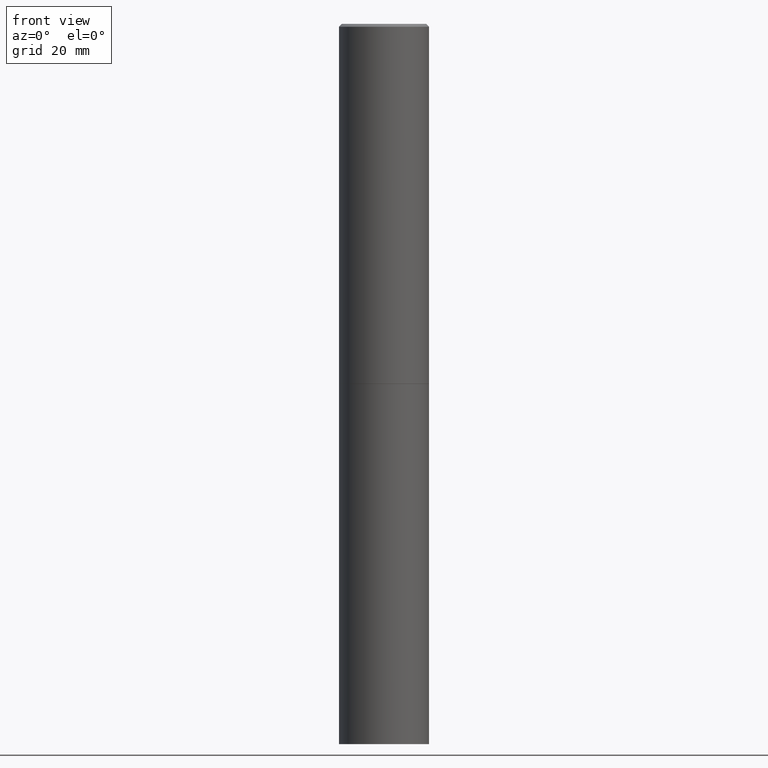
[diagram: clean part render]
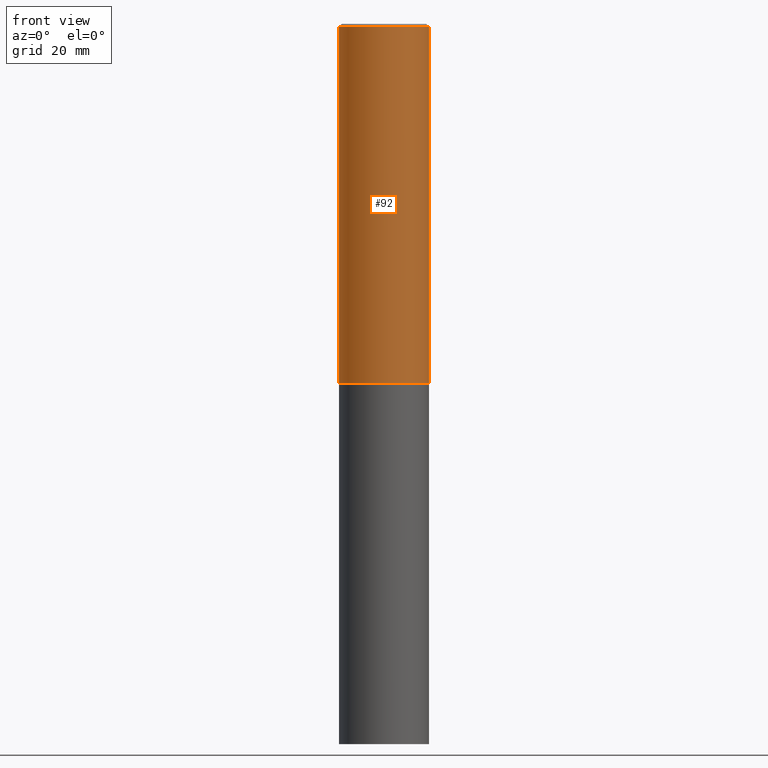
[diagram: same view with one face highlighted and labeled with its STEP entity id]
A machine part, front view. The second image highlights one B-rep face of the part: STEP entity #92.
In plain terms, the highlighted cylindrical surface (partial cylindrical patch) has radius 7.9375 mm, axis along (-0, 0, 1).
Its self-contained STEP definition (entity closure, byte-faithful):
#6 = EDGE_CURVE ( 'NONE', #114, #268, #324, .T. ) ;
#12 = EDGE_LOOP ( 'NONE', ( #245, #123, #58, #172 ) ) ;
#37 = EDGE_CURVE ( 'NONE', #79, #114, #294, .T. ) ;
#38 = VECTOR ( 'NONE', #320, 39.37007874015748143 ) ;
#52 = CARTESIAN_POINT ( 'NONE',  ( 4.890937612370298557E-31, -6.982962677686327354E-17, -0.02000000000000010103 ) ) ;
#54 = EDGE_CURVE ( 'NONE', #79, #340, #316, .T. ) ;
#58 = ORIENTED_EDGE ( 'NONE', *, *, #6, .T. ) ;
#61 = CIRCLE ( 'NONE', #169, 0.3124999999999997224 ) ;
#63 = CARTESIAN_POINT ( 'NONE',  ( -0.3124999999999998890, 2.220446049250312292E-15, -1.537167215704657391E-29 ) ) ;
#71 = AXIS2_PLACEMENT_3D ( 'NONE', #204, #142, #315 ) ;
#79 = VERTEX_POINT ( 'NONE', #118 ) ;
#88 = FACE_OUTER_BOUND ( 'NONE', #12, .T. ) ;
#92 = ADVANCED_FACE ( 'NONE', ( #88 ), #287, .T. ) ;
#114 = VERTEX_POINT ( 'NONE', #155 ) ;
#118 = CARTESIAN_POINT ( 'NONE',  ( -0.3125000000000000000, -2.177074697022629142E-15, -2.499000000000000998 ) ) ;
#123 = ORIENTED_EDGE ( 'NONE', *, *, #37, .T. ) ;
#142 = DIRECTION ( 'NONE',  ( -2.445468806185136597E-29, 3.491481338843145583E-15, 1.000000000000000000 ) ) ;
#150 = CARTESIAN_POINT ( 'NONE',  ( 6.111226546656659252E-29, -8.725211865769023513E-15, -2.499000000000000998 ) ) ;
#151 = CARTESIAN_POINT ( 'NONE',  ( -0.3124999999999997224, 2.112346210000093077E-15, -0.02000000000000010103 ) ) ;
#152 = VECTOR ( 'NONE', #270, 39.37007874015748143 ) ;
#155 = CARTESIAN_POINT ( 'NONE',  ( 0.3125000000000000000, -1.090738770254598186E-14, -2.499000000000000998 ) ) ;
#161 = DIRECTION ( 'NONE',  ( -2.445468806185136597E-29, 3.491481338843145583E-15, 1.000000000000000000 ) ) ;
#166 = DIRECTION ( 'NONE',  ( 1.000000000000000000, -6.982962677686266711E-15, 0.000000000000000000 ) ) ;
#169 = AXIS2_PLACEMENT_3D ( 'NONE', #52, #161, #166 ) ;
#172 = ORIENTED_EDGE ( 'NONE', *, *, #234, .F. ) ;
#182 = CARTESIAN_POINT ( 'NONE',  ( 0.3124999999999998890, -2.182175836776957558E-15, 1.523805242436229235E-29 ) ) ;
#192 = DIRECTION ( 'NONE',  ( 1.000000000000000000, -6.982962677686265133E-15, 0.000000000000000000 ) ) ;
#204 = CARTESIAN_POINT ( 'NONE',  ( 0.000000000000000000, 0.000000000000000000, 0.000000000000000000 ) ) ;
#234 = EDGE_CURVE ( 'NONE', #340, #268, #61, .T. ) ;
#240 = DIRECTION ( 'NONE',  ( -2.445468806185136597E-29, 3.491481338843145583E-15, 1.000000000000000000 ) ) ;
#245 = ORIENTED_EDGE ( 'NONE', *, *, #54, .F. ) ;
#268 = VERTEX_POINT ( 'NONE', #281 ) ;
#270 = DIRECTION ( 'NONE',  ( -2.445468806185136877E-29, 3.491481338843145188E-15, 1.000000000000000000 ) ) ;
#281 = CARTESIAN_POINT ( 'NONE',  ( 0.3124999999999997224, -2.213735251080464939E-15, -0.02000000000000010103 ) ) ;
#287 = CYLINDRICAL_SURFACE ( 'NONE', #71, 0.3124999999999998890 ) ;
#294 = CIRCLE ( 'NONE', #313, 0.3125000000000000000 ) ;
#313 = AXIS2_PLACEMENT_3D ( 'NONE', #150, #240, #192 ) ;
#315 = DIRECTION ( 'NONE',  ( 1.000000000000000000, -6.982962677686266711E-15, 4.876176775795935232E-29 ) ) ;
#316 = LINE ( 'NONE', #63, #152 ) ;
#320 = DIRECTION ( 'NONE',  ( -2.445468806185136877E-29, 3.491481338843145188E-15, 1.000000000000000000 ) ) ;
#324 = LINE ( 'NONE', #182, #38 ) ;
#340 = VERTEX_POINT ( 'NONE', #151 ) ;